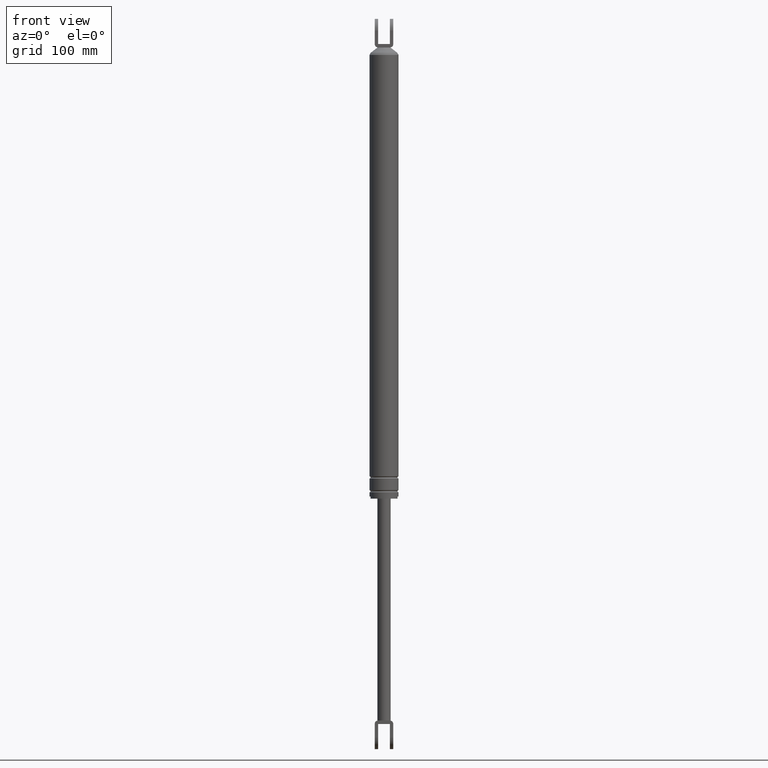
[diagram: clean part render]
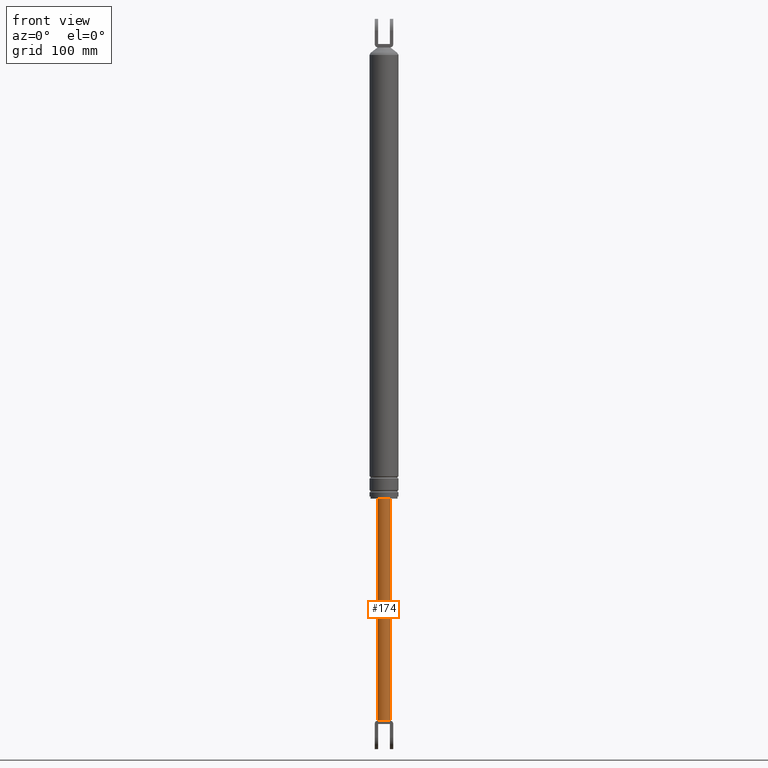
[diagram: same view with one face highlighted and labeled with its STEP entity id]
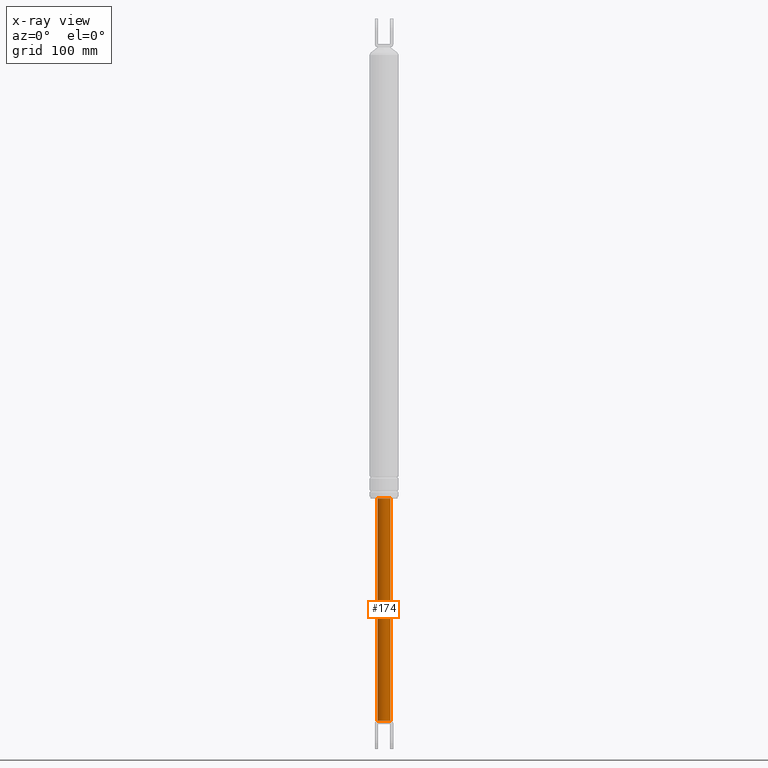
[diagram: x-ray of the same camera — body ghosted, the highlighted face saturated]
A machine part, front view. The second image highlights one B-rep face of the part: STEP entity #174.
The next image is the same camera in x-ray: the body ghosted, the highlighted face saturated — about 0% of this face is hidden behind the body in this view.
In plain terms, the highlighted cylindrical surface (edge-blend (fillet) strip) has radius 6.25 mm, axis along (0, 0, 1).
Its self-contained STEP definition (entity closure, byte-faithful):
#174=ADVANCED_FACE('',(#805),#804,.T.);
#804=CYLINDRICAL_SURFACE('',#1378,6.25000000000E+000);
#805=FACE_OUTER_BOUND('',#1379,.T.);
#1375=CARTESIAN_POINT('',(0.00000000000E+000,0.00000000000E+000,7.87799987000E+002));
#1376=DIRECTION('',(-0.00000000000E+000,-0.00000000000E+000,1.00000000000E+000));
#1377=DIRECTION('',(1.00000000000E+000,-0.00000000000E+000,-0.00000000000E+000));
#1378=AXIS2_PLACEMENT_3D('',#1375,#1376,#1377);
#1379=EDGE_LOOP('',(#1682,#1683,#1684,#1685,#1686,#1687));
#1682=ORIENTED_EDGE('',*,*,#1781,.F.);
#1683=ORIENTED_EDGE('',*,*,#1817,.F.);
#1684=ORIENTED_EDGE('',*,*,#1832,.F.);
#1685=ORIENTED_EDGE('',*,*,#1840,.T.);
#1686=ORIENTED_EDGE('',*,*,#1824,.F.);
#1687=ORIENTED_EDGE('',*,*,#1841,.F.);
#1781=EDGE_CURVE('',#2451,#2458,#2459,.T.);
#1817=EDGE_CURVE('',#2701,#2451,#2702,.T.);
#1824=EDGE_CURVE('',#2748,#2749,#2750,.T.);
#1832=EDGE_CURVE('',#2793,#2701,#2800,.T.);
#1840=EDGE_CURVE('',#2793,#2749,#2850,.T.);
#1841=EDGE_CURVE('',#2458,#2748,#2856,.T.);
#2451=VERTEX_POINT('',#3239);
#2458=VERTEX_POINT('',#3244);
#2459=CIRCLE('',#3248,6.25000000000E+000);
#2701=VERTEX_POINT('',#3401);
#2702=CIRCLE('',#3405,6.25000000000E+000);
#2748=VERTEX_POINT('',#3437);
#2749=VERTEX_POINT('',#3438);
#2750=CIRCLE('',#3442,6.25000000000E+000);
#2793=VERTEX_POINT('',#3466);
#2800=CIRCLE('',#3474,6.25000000000E+000);
#2850=(BOUNDED_CURVE() B_SPLINE_CURVE(1,(#3496,#3497),.UNSPECIFIED.,.F.,.F.) B_SPLINE_CURVE_WITH_KNOTS((2,2),(4.36681190507E-002,9.56331880817E-001),.UNSPECIFIED.) CURVE() GEOMETRIC_REPRESENTATION_ITEM() RATIONAL_B_SPLINE_CURVE((1.00000000000E+000,1.00000000000E+000)) REPRESENTATION_ITEM('') );
#2856=(BOUNDED_CURVE() B_SPLINE_CURVE(1,(#3498,#3499),.UNSPECIFIED.,.F.,.F.) B_SPLINE_CURVE_WITH_KNOTS((2,2),(4.36681192197E-002,9.56331880780E-001),.UNSPECIFIED.) CURVE() GEOMETRIC_REPRESENTATION_ITEM() RATIONAL_B_SPLINE_CURVE((7.50000000000E-001,7.50000000000E-001)) REPRESENTATION_ITEM('') );
#3239=CARTESIAN_POINT('',(-5.69999700000E+000,-2.56369541872E+000,-2.09000016000E+002));
#3244=CARTESIAN_POINT('',(-6.25000000000E+000,-1.32865964537E-008,-2.09000016000E+002));
#3245=CARTESIAN_POINT('',(0.00000000000E+000,0.00000000000E+000,-2.09000016000E+002));
#3246=DIRECTION('',(0.00000000000E+000,-0.00000000000E+000,-1.00000000000E+000));
#3247=DIRECTION('',(-9.11999520000E-001,4.10191266996E-001,-0.00000000000E+000));
#3248=AXIS2_PLACEMENT_3D('',#3245,#3246,#3247);
#3401=CARTESIAN_POINT('',(5.69999700000E+000,-2.56369541872E+000,-2.09000016000E+002));
#3402=CARTESIAN_POINT('',(0.00000000000E+000,0.00000000000E+000,-2.09000016000E+002));
#3403=DIRECTION('',(0.00000000000E+000,0.00000000000E+000,-1.00000000000E+000));
#3404=DIRECTION('',(-1.00000000000E+000,-0.00000000000E+000,-0.00000000000E+000));
#3405=AXIS2_PLACEMENT_3D('',#3402,#3403,#3404);
#3437=CARTESIAN_POINT('',(-6.25000000000E+000,0.00000000000E+000,0.00000000000E+000));
#3438=CARTESIAN_POINT('',(6.25000000000E+000,8.88178419700E-016,0.00000000000E+000));
#3439=CARTESIAN_POINT('',(0.00000000000E+000,0.00000000000E+000,0.00000000000E+000));
#3440=DIRECTION('',(0.00000000000E+000,0.00000000000E+000,1.00000000000E+000));
#3441=DIRECTION('',(-1.00000000000E+000,-1.22460635382E-016,0.00000000000E+000));
#3442=AXIS2_PLACEMENT_3D('',#3439,#3440,#3441);
#3466=CARTESIAN_POINT('',(6.25000000000E+000,8.12925012908E-016,-2.09000016000E+002));
#3471=CARTESIAN_POINT('',(0.00000000000E+000,0.00000000000E+000,-2.09000016000E+002));
#3472=DIRECTION('',(0.00000000000E+000,0.00000000000E+000,-1.00000000000E+000));
#3473=DIRECTION('',(-1.00000000000E+000,-0.00000000000E+000,-0.00000000000E+000));
#3474=AXIS2_PLACEMENT_3D('',#3471,#3472,#3473);
#3496=CARTESIAN_POINT('',(6.25000000000E+000,0.00000000000E+000,-2.09000016039E+002));
#3497=CARTESIAN_POINT('',(6.25000000000E+000,0.00000000000E+000,8.39333225144E-009));
#3498=CARTESIAN_POINT('',(-6.25000000000E+000,0.00000000000E+000,-2.09000016000E+002));
#3499=CARTESIAN_POINT('',(-6.25000000000E+000,0.00000000000E+000,8.28966525053E-015));